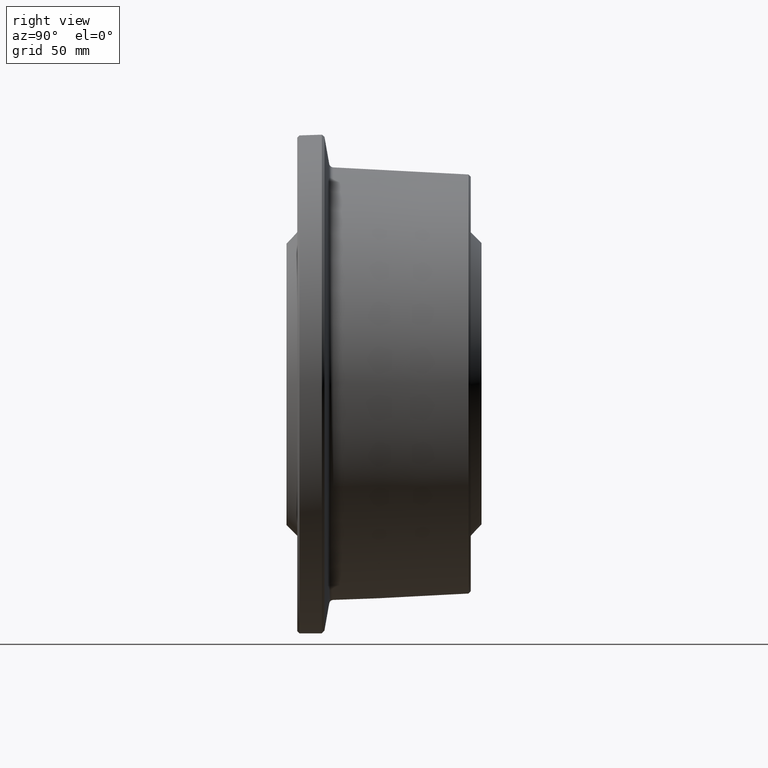
[diagram: clean part render]
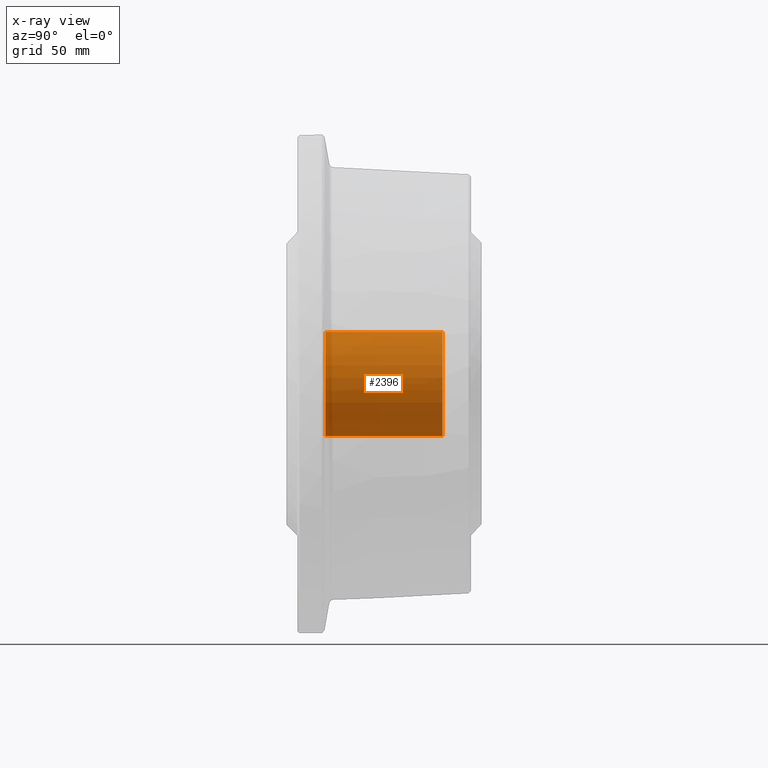
[diagram: x-ray — body ghosted, one internal face saturated and labeled with its STEP entity id]
A machine part, right view, then the same camera in x-ray: the body is ghosted and one INTERNAL B-rep face — a face not visible from any outside direction — is saturated and labeled: STEP entity #2396.
In plain terms, the highlighted cylindrical surface (bore or boss wall) has radius 24 mm, axis along (0, 1, 0).
Its self-contained STEP definition (entity closure, byte-faithful):
#454=FACE_OUTER_BOUND('',#681,.T.);
#681=EDGE_LOOP('',(#2203,#2204,#2205,#2206));
#754=LINE('',#4473,#825);
#825=VECTOR('',#3756,24.0000003576279);
#1033=CIRCLE('',#2860,24.0000003576279);
#1035=CIRCLE('',#2863,24.0000003576279);
#1258=VERTEX_POINT('',#4466);
#1260=VERTEX_POINT('',#4471);
#1573=EDGE_CURVE('',#1258,#1258,#1033,.T.);
#1575=EDGE_CURVE('',#1260,#1260,#1035,.T.);
#1576=EDGE_CURVE('',#1260,#1258,#754,.T.);
#2203=ORIENTED_EDGE('',*,*,#1575,.F.);
#2204=ORIENTED_EDGE('',*,*,#1576,.T.);
#2205=ORIENTED_EDGE('',*,*,#1573,.T.);
#2206=ORIENTED_EDGE('',*,*,#1576,.F.);
#2237=CYLINDRICAL_SURFACE('',#2862,24.0000003576279);
#2396=ADVANCED_FACE('',(#454),#2237,.T.);
#2860=AXIS2_PLACEMENT_3D('',#4467,#3748,#3749);
#2862=AXIS2_PLACEMENT_3D('',#4470,#3752,#3753);
#2863=AXIS2_PLACEMENT_3D('',#4472,#3754,#3755);
#3748=DIRECTION('center_axis',(0.,1.,0.));
#3749=DIRECTION('ref_axis',(1.,0.,0.));
#3752=DIRECTION('center_axis',(0.,1.,0.));
#3753=DIRECTION('ref_axis',(0.,0.,1.));
#3754=DIRECTION('center_axis',(0.,1.,0.));
#3755=DIRECTION('ref_axis',(1.,0.,0.));
#3756=DIRECTION('',(0.,-1.,0.));
#4466=CARTESIAN_POINT('',(-2.93915236175043E-15,-27.0000004023314,-24.0000003576279));
#4467=CARTESIAN_POINT('Origin',(0.,-27.0000004023314,0.));
#4470=CARTESIAN_POINT('Origin',(0.,0.,0.));
#4471=CARTESIAN_POINT('',(-2.93915236175043E-15,27.0000004023314,-24.0000003576279));
#4472=CARTESIAN_POINT('Origin',(0.,27.0000004023314,0.));
#4473=CARTESIAN_POINT('',(-2.93915236175043E-15,0.,-24.0000003576279));